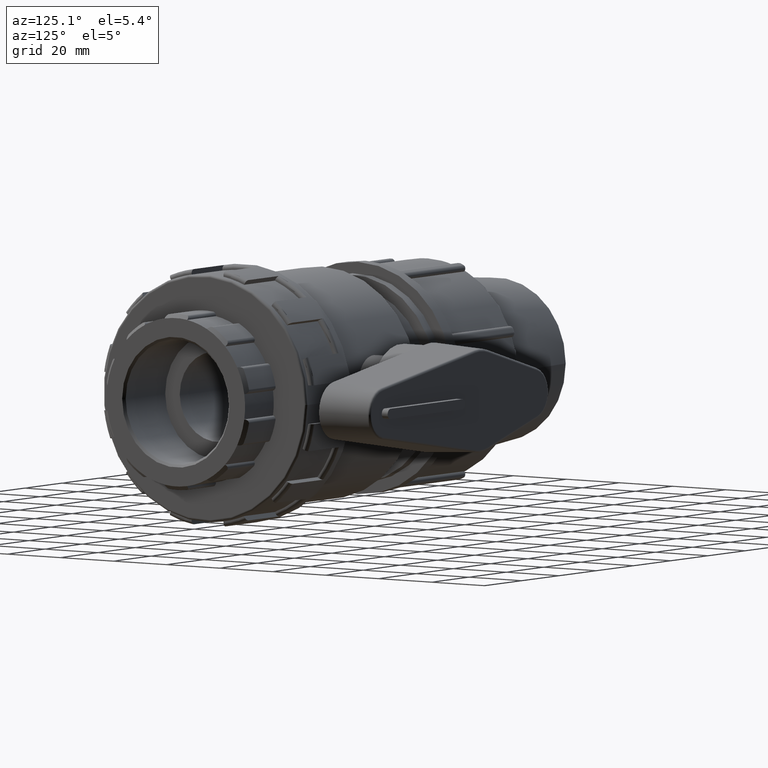
[diagram: clean part render]
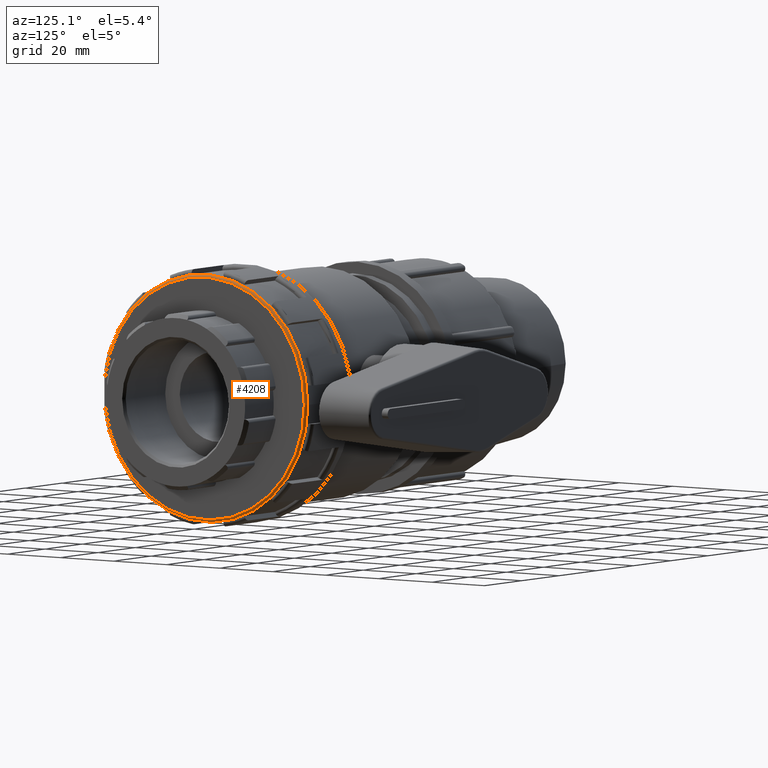
[diagram: same view with one face highlighted and labeled with its STEP entity id]
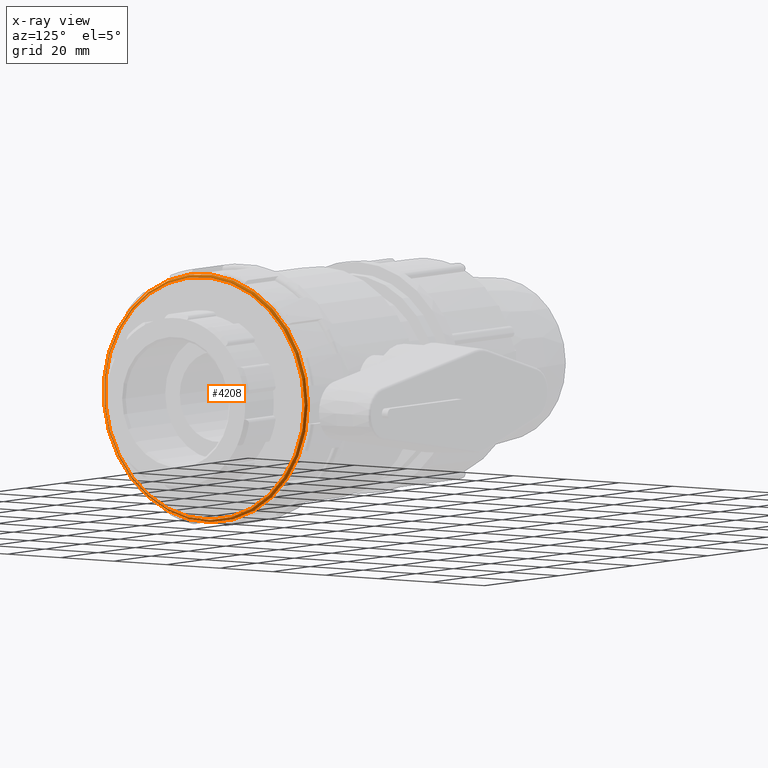
[diagram: x-ray of the same camera — body ghosted, the highlighted face saturated]
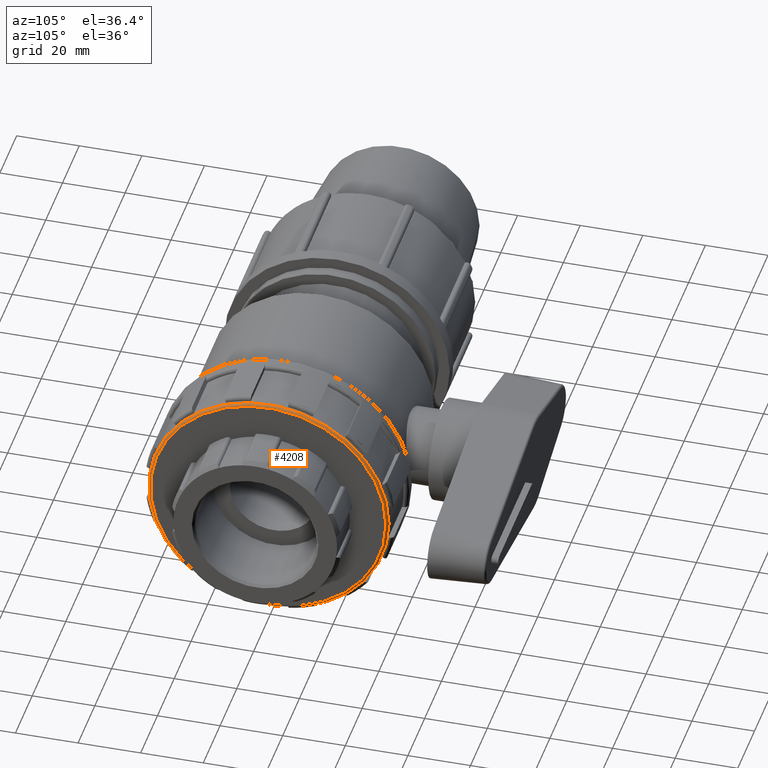
[diagram: same view with one face highlighted and labeled with its STEP entity id]
A machine part, auxiliary view. The second image highlights one B-rep face of the part: STEP entity #4208.
The next image is the same camera in x-ray: the body ghosted, the highlighted face saturated — about 0% of this face is hidden behind the body in this view.
A second angle (auxiliary view) of the same face is appended — the face is thin or edge-on in the first view.
In plain terms, the highlighted toroidal blend (fillet) surface has major radius 37.621 mm and minor (blend) radius 0.779 mm.
Its self-contained STEP definition (entity closure, byte-faithful):
#51=FACE_BOUND('',#854,.T.);
#107=TOROIDAL_SURFACE('',#4695,37.62096,0.77904);
#588=FACE_OUTER_BOUND('',#853,.T.);
#853=EDGE_LOOP('',(#3783));
#854=EDGE_LOOP('',(#3784));
#1595=CIRCLE('',#4696,37.62096);
#1596=CIRCLE('',#4697,38.4);
#2008=VERTEX_POINT('',#8585);
#2009=VERTEX_POINT('',#8587);
#2635=EDGE_CURVE('',#2008,#2008,#1595,.T.);
#2636=EDGE_CURVE('',#2009,#2009,#1596,.T.);
#3783=ORIENTED_EDGE('',*,*,#2635,.T.);
#3784=ORIENTED_EDGE('',*,*,#2636,.T.);
#4208=ADVANCED_FACE('',(#588,#51),#107,.T.);
#4695=AXIS2_PLACEMENT_3D('',#8584,#5892,#5893);
#4696=AXIS2_PLACEMENT_3D('',#8586,#5894,#5895);
#4697=AXIS2_PLACEMENT_3D('',#8588,#5896,#5897);
#5892=DIRECTION('center_axis',(-1.,0.,0.));
#5893=DIRECTION('ref_axis',(0.,0.,1.));
#5894=DIRECTION('center_axis',(-1.,0.,0.));
#5895=DIRECTION('ref_axis',(0.,-1.,-1.83697019872103E-16));
#5896=DIRECTION('center_axis',(1.,0.,0.));
#5897=DIRECTION('ref_axis',(0.,-1.,-1.83697019872103E-16));
#8584=CARTESIAN_POINT('Origin',(41.82096,0.,0.));
#8585=CARTESIAN_POINT('',(42.6,37.62096,2.30361941224253E-15));
#8586=CARTESIAN_POINT('Origin',(42.6,0.,0.));
#8587=CARTESIAN_POINT('',(41.82096,38.4,1.17566092718146E-14));
#8588=CARTESIAN_POINT('Origin',(41.82096,0.,0.));